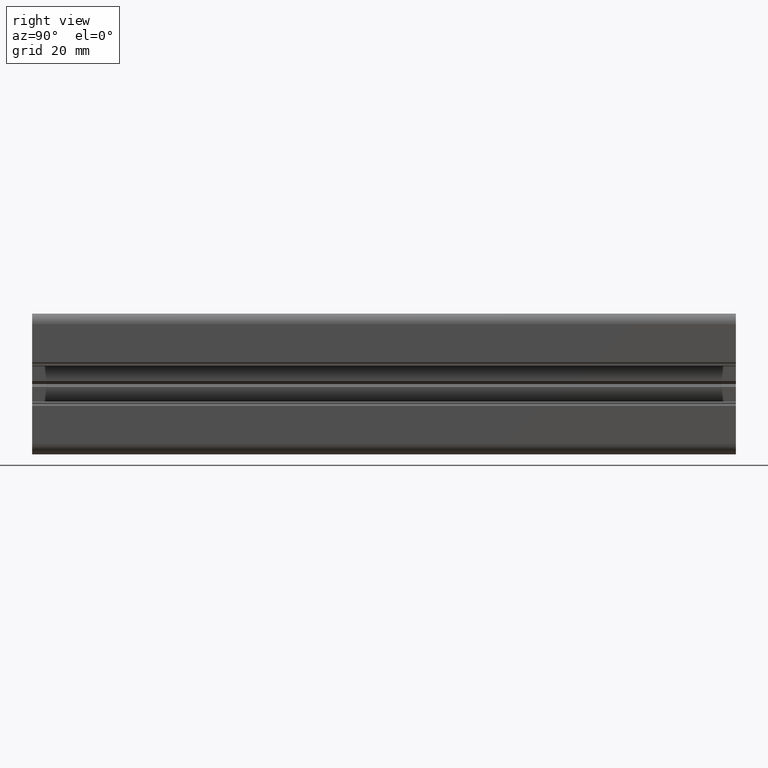
[diagram: clean part render]
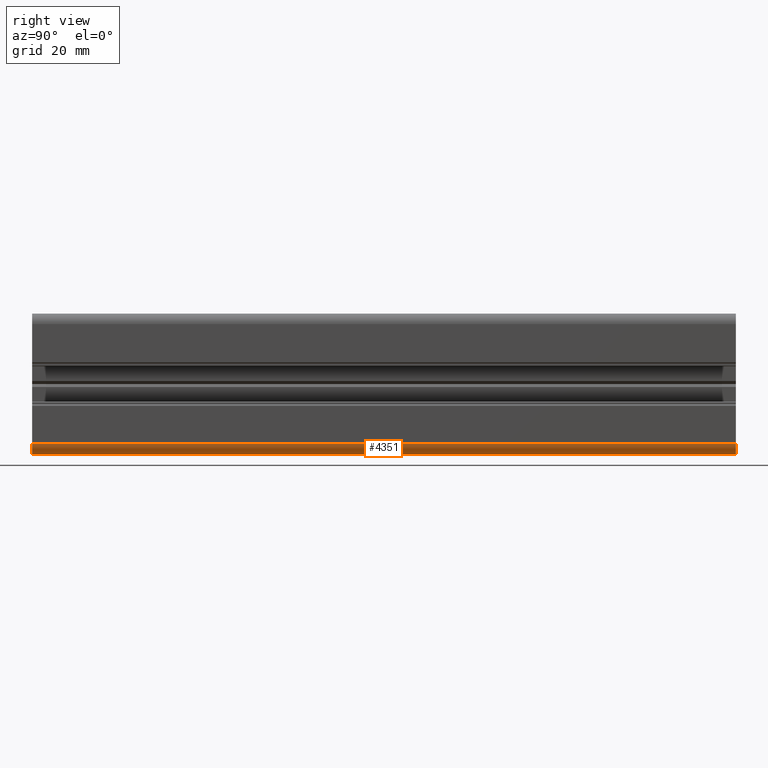
[diagram: same view with one face highlighted and labeled with its STEP entity id]
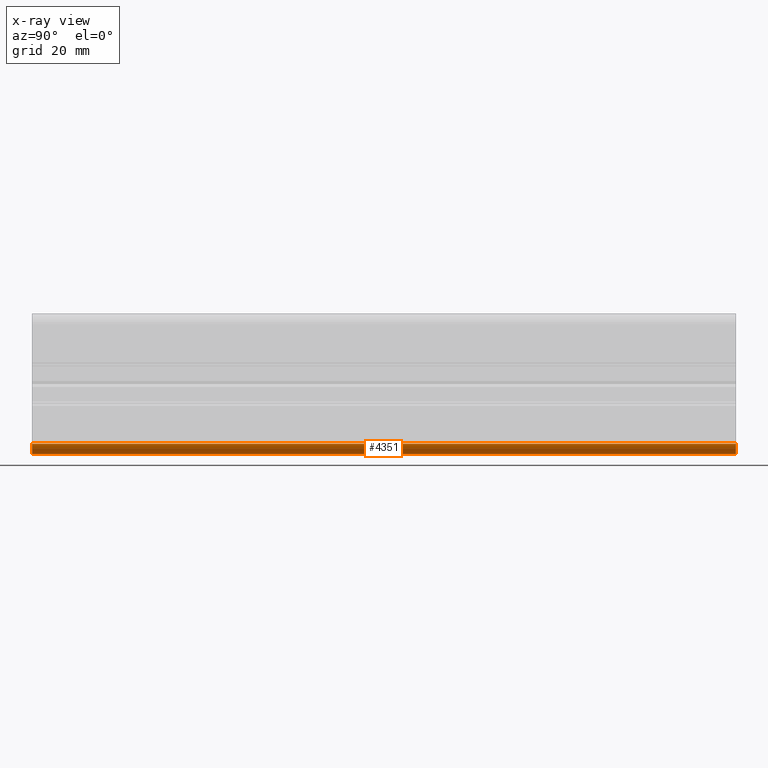
[diagram: x-ray of the same camera — body ghosted, the highlighted face saturated]
A machine part, right view. The second image highlights one B-rep face of the part: STEP entity #4351.
The next image is the same camera in x-ray: the body ghosted, the highlighted face saturated — about 0% of this face is hidden behind the body in this view.
In plain terms, the highlighted cylindrical surface (edge-blend (fillet) strip) has radius 3 mm, axis along (0, 1, 0).
Its self-contained STEP definition (entity closure, byte-faithful):
#91 = DIRECTION ( 'NONE',  ( -0.0000000000000000000, -1.000000000000000000, -0.0000000000000000000 ) ) ;
#232 = VERTEX_POINT ( 'NONE', #276 ) ;
#276 = CARTESIAN_POINT ( 'NONE',  ( 20.00000000000006000, 0.0000000000000000000, -17.00000000000040100 ) ) ;
#319 = ORIENTED_EDGE ( 'NONE', *, *, #4344, .T. ) ;
#447 = CARTESIAN_POINT ( 'NONE',  ( 17.00000000000020300, 200.0000000000000000, -20.00000000000050100 ) ) ;
#611 = CARTESIAN_POINT ( 'NONE',  ( 20.00000000000006000, 200.0000000000000000, -17.00000000000040100 ) ) ;
#646 = EDGE_CURVE ( 'NONE', #1059, #5116, #5097, .T. ) ;
#877 = FACE_OUTER_BOUND ( 'NONE', #1848, .T. ) ;
#1059 = VERTEX_POINT ( 'NONE', #447 ) ;
#1163 = DIRECTION ( 'NONE',  ( 0.0000000000000000000, 1.000000000000000000, 0.0000000000000000000 ) ) ;
#1350 = EDGE_CURVE ( 'NONE', #232, #5116, #4271, .T. ) ;
#1589 = DIRECTION ( 'NONE',  ( 0.0000000000000000000, 0.0000000000000000000, 1.000000000000000000 ) ) ;
#1848 = EDGE_LOOP ( 'NONE', ( #4418, #2424, #3473, #319 ) ) ;
#1908 = LINE ( 'NONE', #2908, #4331 ) ;
#2422 = AXIS2_PLACEMENT_3D ( 'NONE', #3035, #3000, #5196 ) ;
#2424 = ORIENTED_EDGE ( 'NONE', *, *, #646, .F. ) ;
#2555 = VERTEX_POINT ( 'NONE', #611 ) ;
#2562 = CIRCLE ( 'NONE', #4431, 3.000000000000120800 ) ;
#2858 = DIRECTION ( 'NONE',  ( 0.0000000000000000000, 0.0000000000000000000, 1.000000000000000000 ) ) ;
#2908 = CARTESIAN_POINT ( 'NONE',  ( 20.00000000000012100, 0.0000000000000000000, -17.00000000000040100 ) ) ;
#3000 = DIRECTION ( 'NONE',  ( 0.0000000000000000000, 1.000000000000000000, 0.0000000000000000000 ) ) ;
#3035 = CARTESIAN_POINT ( 'NONE',  ( 17.00000000000000000, 0.0000000000000000000, -17.00000000000040100 ) ) ;
#3345 = DIRECTION ( 'NONE',  ( -0.0000000000000000000, -1.000000000000000000, -0.0000000000000000000 ) ) ;
#3473 = ORIENTED_EDGE ( 'NONE', *, *, #5337, .T. ) ;
#3770 = CARTESIAN_POINT ( 'NONE',  ( 17.00000000000000000, 0.0000000000000000000, -17.00000000000040100 ) ) ;
#3811 = CARTESIAN_POINT ( 'NONE',  ( 17.00000000000000000, 200.0000000000000000, -17.00000000000040100 ) ) ;
#4200 = CYLINDRICAL_SURFACE ( 'NONE', #5049, 3.000000000000120800 ) ;
#4271 = CIRCLE ( 'NONE', #2422, 3.000000000000120800 ) ;
#4331 = VECTOR ( 'NONE', #3345, 1000.000000000000000 ) ;
#4344 = EDGE_CURVE ( 'NONE', #2555, #232, #1908, .T. ) ;
#4351 = ADVANCED_FACE ( 'NONE', ( #877 ), #4200, .T. ) ;
#4418 = ORIENTED_EDGE ( 'NONE', *, *, #1350, .T. ) ;
#4431 = AXIS2_PLACEMENT_3D ( 'NONE', #3811, #4680, #2858 ) ;
#4477 = CARTESIAN_POINT ( 'NONE',  ( 17.00000000000040100, 0.0000000000000000000, -20.00000000000050100 ) ) ;
#4479 = CARTESIAN_POINT ( 'NONE',  ( 17.00000000000020300, 0.0000000000000000000, -20.00000000000050100 ) ) ;
#4680 = DIRECTION ( 'NONE',  ( -0.0000000000000000000, -1.000000000000000000, -0.0000000000000000000 ) ) ;
#5049 = AXIS2_PLACEMENT_3D ( 'NONE', #3770, #1163, #1589 ) ;
#5097 = LINE ( 'NONE', #4477, #5504 ) ;
#5116 = VERTEX_POINT ( 'NONE', #4479 ) ;
#5196 = DIRECTION ( 'NONE',  ( 0.0000000000000000000, 0.0000000000000000000, 1.000000000000000000 ) ) ;
#5337 = EDGE_CURVE ( 'NONE', #1059, #2555, #2562, .T. ) ;
#5504 = VECTOR ( 'NONE', #91, 1000.000000000000000 ) ;